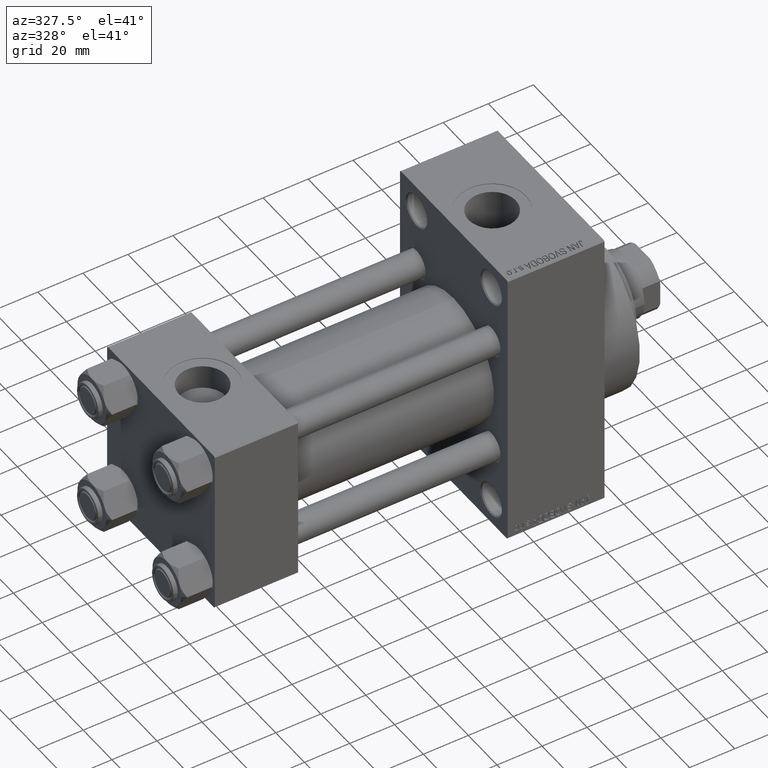
[diagram: clean part render]
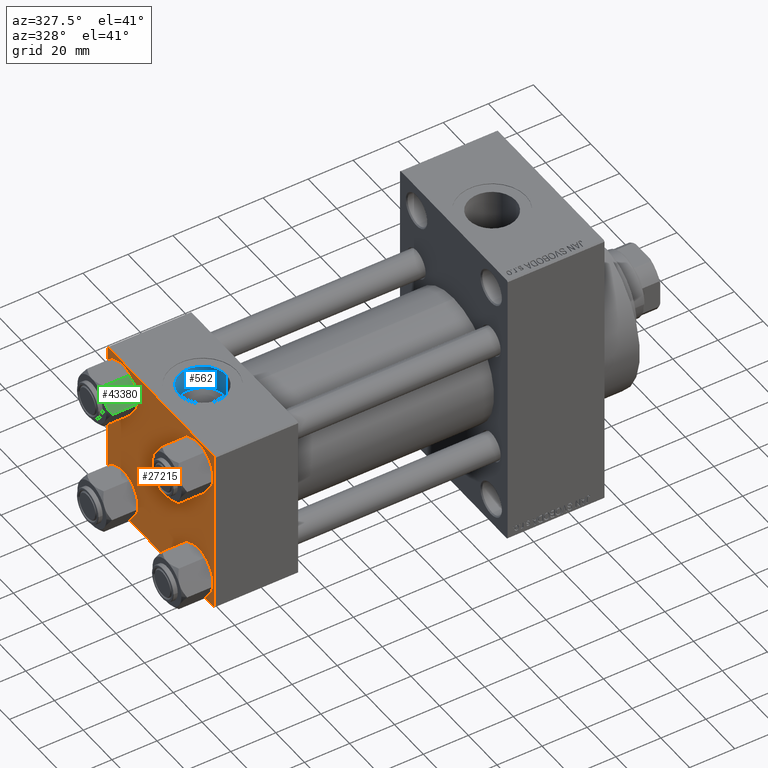
[diagram: same view with three faces highlighted in distinct colors, each labeled with its STEP entity id]
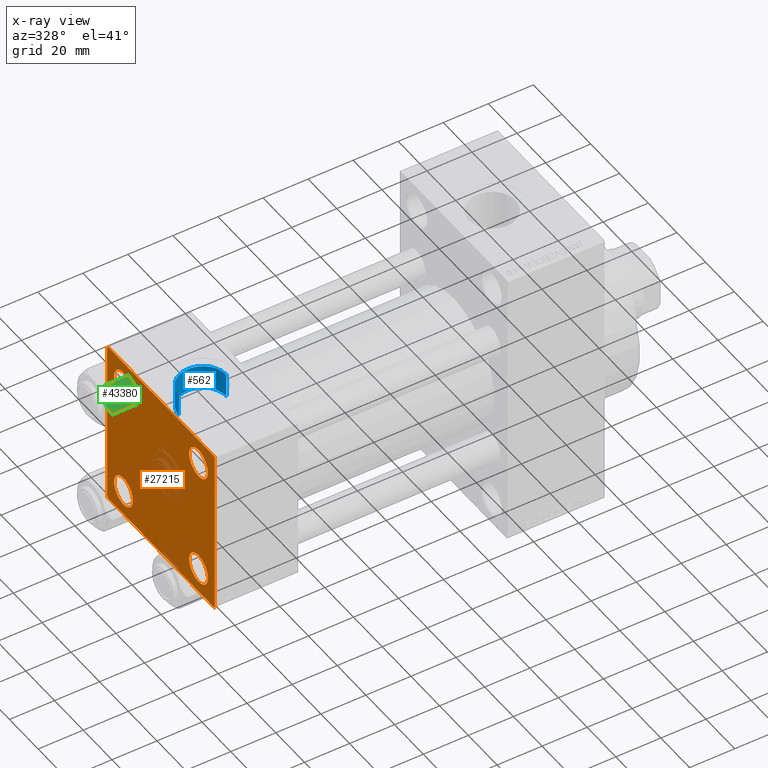
[diagram: x-ray of the same camera — body ghosted, the three highlighted faces saturated]
A machine part, auxiliary view with three faces highlighted in distinct colors.
The next image is the same camera in x-ray (body ghosted, the three faces saturated) — at least one of them is partly hidden behind the body in this view.
Their STEP definitions:

[orange] entity #27215 — the highlighted planar face has unit normal (-1, 0, 0).
#101 = EDGE_LOOP ( 'NONE', ( #21388, #47001 ) ) ;
#481 = ORIENTED_EDGE ( 'NONE', *, *, #20413, .T. ) ;
#542 = VERTEX_POINT ( 'NONE', #41646 ) ;
#585 = EDGE_CURVE ( 'NONE', #37357, #9671, #28451, .T. ) ;
#1313 = VERTEX_POINT ( 'NONE', #38065 ) ;
#1989 = LINE ( 'NONE', #35161, #24114 ) ;
#2491 = VERTEX_POINT ( 'NONE', #6250 ) ;
#2513 = CARTESIAN_POINT ( 'NONE',  ( 0.000000000000000000, -26.14999999999999147, 26.15000000000000924 ) ) ;
#3153 = DIRECTION ( 'NONE',  ( 1.000000000000000000, -0.000000000000000000, 0.000000000000000000 ) ) ;
#3506 = DIRECTION ( 'NONE',  ( 1.000000000000000000, -0.000000000000000000, 0.000000000000000000 ) ) ;
#4049 = AXIS2_PLACEMENT_3D ( 'NONE', #38309, #5617, #20174 ) ;
#4091 = FACE_BOUND ( 'NONE', #43826, .T. ) ;
#4503 = CARTESIAN_POINT ( 'NONE',  ( 0.000000000000000000, 37.49999999999999289, 37.00000000000000000 ) ) ;
#4544 = CIRCLE ( 'NONE', #17486, 6.500000000000023093 ) ;
#4675 = EDGE_CURVE ( 'NONE', #542, #18519, #33747, .T. ) ;
#4711 = VERTEX_POINT ( 'NONE', #7214 ) ;
#5563 = CIRCLE ( 'NONE', #36044, 6.500000000000023093 ) ;
#5617 = DIRECTION ( 'NONE',  ( 1.000000000000000000, -0.000000000000000000, 0.000000000000000000 ) ) ;
#5880 = DIRECTION ( 'NONE',  ( 1.000000000000000000, -0.000000000000000000, 0.000000000000000000 ) ) ;
#6245 = CARTESIAN_POINT ( 'NONE',  ( 0.000000000000000000, 26.14999999999999858, 19.64999999999998437 ) ) ;
#6250 = CARTESIAN_POINT ( 'NONE',  ( 0.000000000000000000, 26.14999999999999858, 32.65000000000002700 ) ) ;
#6845 = VERTEX_POINT ( 'NONE', #10498 ) ;
#6994 = ORIENTED_EDGE ( 'NONE', *, *, #4675, .T. ) ;
#7069 = DIRECTION ( 'NONE',  ( 0.000000000000000000, 0.000000000000000000, 1.000000000000000000 ) ) ;
#7214 = CARTESIAN_POINT ( 'NONE',  ( 0.000000000000000000, -37.50000000000000000, -37.00000000000003553 ) ) ;
#7694 = DIRECTION ( 'NONE',  ( 1.000000000000000000, -0.000000000000000000, 0.000000000000000000 ) ) ;
#7818 = VECTOR ( 'NONE', #13500, 1000.000000000000114 ) ;
#7908 = DIRECTION ( 'NONE',  ( 0.000000000000000000, 0.000000000000000000, 1.000000000000000000 ) ) ;
#8133 = PLANE ( 'NONE',  #44174 ) ;
#8295 = DIRECTION ( 'NONE',  ( -0.000000000000000000, 0.7071067811865474617, 0.7071067811865474617 ) ) ;
#8779 = DIRECTION ( 'NONE',  ( 0.000000000000000000, 0.000000000000000000, 1.000000000000000000 ) ) ;
#9433 = EDGE_LOOP ( 'NONE', ( #30407, #6994 ) ) ;
#9446 = CARTESIAN_POINT ( 'NONE',  ( 0.000000000000000000, -26.14999999999999147, -32.65000000000002700 ) ) ;
#9671 = VERTEX_POINT ( 'NONE', #38068 ) ;
#9776 = CIRCLE ( 'NONE', #21212, 6.500000000000023093 ) ;
#9791 = VERTEX_POINT ( 'NONE', #12758 ) ;
#9973 = EDGE_CURVE ( 'NONE', #43990, #2491, #24794, .T. ) ;
#10082 = CARTESIAN_POINT ( 'NONE',  ( 0.000000000000000000, 26.14999999999999858, 26.15000000000000213 ) ) ;
#10145 = CARTESIAN_POINT ( 'NONE',  ( 0.000000000000000000, 37.24999999999999289, 37.24999999999999289 ) ) ;
#10498 = CARTESIAN_POINT ( 'NONE',  ( 0.000000000000000000, -37.00000000000000711, 37.49999999999999289 ) ) ;
#10576 = CARTESIAN_POINT ( 'NONE',  ( 0.000000000000000000, 37.49999999999999289, -36.99999999999998579 ) ) ;
#10727 = EDGE_CURVE ( 'NONE', #9671, #37357, #38427, .T. ) ;
#11236 = VECTOR ( 'NONE', #27697, 1000.000000000000000 ) ;
#11751 = CARTESIAN_POINT ( 'NONE',  ( 0.000000000000000000, 37.49999999999999289, -37.50000000000000000 ) ) ;
#11843 = DIRECTION ( 'NONE',  ( 0.000000000000000000, 0.000000000000000000, -1.000000000000000000 ) ) ;
#12001 = ORIENTED_EDGE ( 'NONE', *, *, #32194, .T. ) ;
#12758 = CARTESIAN_POINT ( 'NONE',  ( 0.000000000000000000, 36.99999999999997868, -37.50000000000000000 ) ) ;
#13240 = VERTEX_POINT ( 'NONE', #14124 ) ;
#13500 = DIRECTION ( 'NONE',  ( 0.000000000000000000, 0.7071067811865474617, -0.7071067811865474617 ) ) ;
#13545 = CARTESIAN_POINT ( 'NONE',  ( 0.000000000000000000, -26.14999999999999147, 26.15000000000000924 ) ) ;
#14083 = LINE ( 'NONE', #34059, #24701 ) ;
#14124 = CARTESIAN_POINT ( 'NONE',  ( 0.000000000000000000, 36.99999999999999289, 37.50000000000000000 ) ) ;
#14428 = VERTEX_POINT ( 'NONE', #4503 ) ;
#14615 = CARTESIAN_POINT ( 'NONE',  ( 0.000000000000000000, -26.14999999999999147, 19.64999999999999147 ) ) ;
#15901 = CARTESIAN_POINT ( 'NONE',  ( 0.000000000000000000, 37.49999999999999289, 37.50000000000000000 ) ) ;
#16097 = EDGE_CURVE ( 'NONE', #1313, #4711, #1989, .T. ) ;
#16288 = VERTEX_POINT ( 'NONE', #14615 ) ;
#16582 = CARTESIAN_POINT ( 'NONE',  ( 0.000000000000000000, -26.14999999999999147, -26.15000000000000924 ) ) ;
#16642 = LINE ( 'NONE', #40989, #30842 ) ;
#17031 = VECTOR ( 'NONE', #28055, 1000.000000000000000 ) ;
#17168 = VERTEX_POINT ( 'NONE', #10576 ) ;
#17486 = AXIS2_PLACEMENT_3D ( 'NONE', #10082, #3153, #35383 ) ;
#18469 = EDGE_CURVE ( 'NONE', #9791, #1313, #44448, .T. ) ;
#18519 = VERTEX_POINT ( 'NONE', #22497 ) ;
#18591 = DIRECTION ( 'NONE',  ( -0.000000000000000000, -0.7071067811865474617, -0.7071067811865474617 ) ) ;
#19381 = DIRECTION ( 'NONE',  ( 0.000000000000000000, -1.000000000000000000, -9.251858538542972814E-17 ) ) ;
#19647 = ORIENTED_EDGE ( 'NONE', *, *, #16097, .T. ) ;
#20174 = DIRECTION ( 'NONE',  ( 0.000000000000000000, 0.000000000000000000, 1.000000000000000000 ) ) ;
#20413 = EDGE_CURVE ( 'NONE', #23329, #16288, #9776, .T. ) ;
#21212 = AXIS2_PLACEMENT_3D ( 'NONE', #13545, #3506, #7069 ) ;
#21388 = ORIENTED_EDGE ( 'NONE', *, *, #27167, .T. ) ;
#21771 = FACE_OUTER_BOUND ( 'NONE', #25844, .T. ) ;
#21784 = DIRECTION ( 'NONE',  ( 1.000000000000000000, -0.000000000000000000, 0.000000000000000000 ) ) ;
#22142 = CARTESIAN_POINT ( 'NONE',  ( 0.000000000000000000, -26.14999999999999147, 32.65000000000003411 ) ) ;
#22497 = CARTESIAN_POINT ( 'NONE',  ( 0.000000000000000000, 26.14999999999999858, -19.64999999999998792 ) ) ;
#23329 = VERTEX_POINT ( 'NONE', #22142 ) ;
#23699 = ORIENTED_EDGE ( 'NONE', *, *, #46981, .F. ) ;
#24114 = VECTOR ( 'NONE', #24184, 1000.000000000000000 ) ;
#24184 = DIRECTION ( 'NONE',  ( 0.000000000000000000, -0.7071067811865524577, 0.7071067811865426878 ) ) ;
#24359 = CARTESIAN_POINT ( 'NONE',  ( 0.000000000000000000, 37.49999999999999289, 37.50000000000000000 ) ) ;
#24629 = ORIENTED_EDGE ( 'NONE', *, *, #37404, .F. ) ;
#24701 = VECTOR ( 'NONE', #18591, 1000.000000000000114 ) ;
#24794 = CIRCLE ( 'NONE', #38498, 6.500000000000023093 ) ;
#25844 = EDGE_LOOP ( 'NONE', ( #43935, #31622, #35665, #19647, #24629, #33697, #23699, #31493 ) ) ;
#27167 = EDGE_CURVE ( 'NONE', #2491, #43990, #4544, .T. ) ;
#27215 = ADVANCED_FACE ( 'NONE', ( #4091, #44653, #37257, #33213, #21771 ), #8133, .T. ) ;
#27458 = EDGE_CURVE ( 'NONE', #14428, #17168, #40487, .T. ) ;
#27697 = DIRECTION ( 'NONE',  ( 0.000000000000000000, -1.000000000000000000, -9.251858538542971581E-17 ) ) ;
#28055 = DIRECTION ( 'NONE',  ( 0.000000000000000000, 9.251858538542971581E-17, -1.000000000000000000 ) ) ;
#28284 = LINE ( 'NONE', #38318, #17031 ) ;
#28433 = ORIENTED_EDGE ( 'NONE', *, *, #10727, .T. ) ;
#28451 = CIRCLE ( 'NONE', #4049, 6.500000000000015987 ) ;
#28927 = ORIENTED_EDGE ( 'NONE', *, *, #585, .T. ) ;
#29506 = AXIS2_PLACEMENT_3D ( 'NONE', #38144, #30990, #8779 ) ;
#29867 = CARTESIAN_POINT ( 'NONE',  ( 0.000000000000000000, 0.000000000000000000, 0.000000000000000000 ) ) ;
#30189 = VERTEX_POINT ( 'NONE', #37775 ) ;
#30407 = ORIENTED_EDGE ( 'NONE', *, *, #45878, .T. ) ;
#30445 = DIRECTION ( 'NONE',  ( 1.000000000000000000, -0.000000000000000000, 0.000000000000000000 ) ) ;
#30842 = VECTOR ( 'NONE', #8295, 1000.000000000000114 ) ;
#30990 = DIRECTION ( 'NONE',  ( 1.000000000000000000, -0.000000000000000000, 0.000000000000000000 ) ) ;
#31481 = AXIS2_PLACEMENT_3D ( 'NONE', #43270, #21784, #7908 ) ;
#31493 = ORIENTED_EDGE ( 'NONE', *, *, #35539, .T. ) ;
#31622 = ORIENTED_EDGE ( 'NONE', *, *, #35012, .T. ) ;
#31751 = LINE ( 'NONE', #24359, #11236 ) ;
#32194 = EDGE_CURVE ( 'NONE', #16288, #23329, #5563, .T. ) ;
#32734 = VECTOR ( 'NONE', #11843, 1000.000000000000000 ) ;
#32755 = DIRECTION ( 'NONE',  ( -0.000000000000000000, 0.000000000000000000, 1.000000000000000000 ) ) ;
#33108 = AXIS2_PLACEMENT_3D ( 'NONE', #16582, #30445, #44992 ) ;
#33213 = FACE_BOUND ( 'NONE', #101, .T. ) ;
#33320 = CIRCLE ( 'NONE', #29506, 6.500000000000015987 ) ;
#33478 = CARTESIAN_POINT ( 'NONE',  ( 0.000000000000000000, 26.14999999999999858, 26.15000000000000213 ) ) ;
#33697 = ORIENTED_EDGE ( 'NONE', *, *, #40141, .T. ) ;
#33747 = CIRCLE ( 'NONE', #31481, 6.500000000000015987 ) ;
#34059 = CARTESIAN_POINT ( 'NONE',  ( 0.000000000000000000, 37.24999999999998579, -37.24999999999998579 ) ) ;
#34992 = DIRECTION ( 'NONE',  ( 0.000000000000000000, 0.000000000000000000, 1.000000000000000000 ) ) ;
#35012 = EDGE_CURVE ( 'NONE', #17168, #9791, #14083, .T. ) ;
#35161 = CARTESIAN_POINT ( 'NONE',  ( 0.000000000000000000, -37.24999999999975842, -37.25000000000027001 ) ) ;
#35383 = DIRECTION ( 'NONE',  ( 0.000000000000000000, 0.000000000000000000, 1.000000000000000000 ) ) ;
#35539 = EDGE_CURVE ( 'NONE', #13240, #14428, #43082, .T. ) ;
#35665 = ORIENTED_EDGE ( 'NONE', *, *, #18469, .T. ) ;
#36044 = AXIS2_PLACEMENT_3D ( 'NONE', #2513, #5880, #34992 ) ;
#36347 = DIRECTION ( 'NONE',  ( 0.000000000000000000, 0.000000000000000000, 1.000000000000000000 ) ) ;
#37257 = FACE_BOUND ( 'NONE', #9433, .T. ) ;
#37357 = VERTEX_POINT ( 'NONE', #9446 ) ;
#37404 = EDGE_CURVE ( 'NONE', #30189, #4711, #28284, .T. ) ;
#37775 = CARTESIAN_POINT ( 'NONE',  ( 0.000000000000000000, -37.50000000000000711, 36.99999999999999289 ) ) ;
#38065 = CARTESIAN_POINT ( 'NONE',  ( 0.000000000000000000, -37.00000000000002132, -37.50000000000000711 ) ) ;
#38068 = CARTESIAN_POINT ( 'NONE',  ( 0.000000000000000000, -26.14999999999999147, -19.64999999999999503 ) ) ;
#38144 = CARTESIAN_POINT ( 'NONE',  ( 0.000000000000000000, 26.14999999999999858, -26.15000000000000213 ) ) ;
#38309 = CARTESIAN_POINT ( 'NONE',  ( 0.000000000000000000, -26.14999999999999147, -26.15000000000000924 ) ) ;
#38318 = CARTESIAN_POINT ( 'NONE',  ( 0.000000000000000000, -37.50000000000000711, 37.49999999999999289 ) ) ;
#38427 = CIRCLE ( 'NONE', #33108, 6.500000000000015987 ) ;
#38498 = AXIS2_PLACEMENT_3D ( 'NONE', #33478, #7694, #36347 ) ;
#40141 = EDGE_CURVE ( 'NONE', #30189, #6845, #16642, .T. ) ;
#40372 = DIRECTION ( 'NONE',  ( -1.000000000000000000, 0.000000000000000000, -0.000000000000000000 ) ) ;
#40487 = LINE ( 'NONE', #15901, #32734 ) ;
#40989 = CARTESIAN_POINT ( 'NONE',  ( -0.000000000000000000, -37.25000000000000000, 37.25000000000000000 ) ) ;
#41646 = CARTESIAN_POINT ( 'NONE',  ( 0.000000000000000000, 26.14999999999999858, -32.65000000000001990 ) ) ;
#43082 = LINE ( 'NONE', #10145, #7818 ) ;
#43270 = CARTESIAN_POINT ( 'NONE',  ( 0.000000000000000000, 26.14999999999999858, -26.15000000000000213 ) ) ;
#43826 = EDGE_LOOP ( 'NONE', ( #481, #12001 ) ) ;
#43935 = ORIENTED_EDGE ( 'NONE', *, *, #27458, .T. ) ;
#43990 = VERTEX_POINT ( 'NONE', #6245 ) ;
#44174 = AXIS2_PLACEMENT_3D ( 'NONE', #29867, #40372, #32755 ) ;
#44448 = LINE ( 'NONE', #11751, #46320 ) ;
#44653 = FACE_BOUND ( 'NONE', #45101, .T. ) ;
#44992 = DIRECTION ( 'NONE',  ( 0.000000000000000000, 0.000000000000000000, 1.000000000000000000 ) ) ;
#45101 = EDGE_LOOP ( 'NONE', ( #28433, #28927 ) ) ;
#45878 = EDGE_CURVE ( 'NONE', #18519, #542, #33320, .T. ) ;
#46320 = VECTOR ( 'NONE', #19381, 1000.000000000000000 ) ;
#46981 = EDGE_CURVE ( 'NONE', #13240, #6845, #31751, .T. ) ;
#47001 = ORIENTED_EDGE ( 'NONE', *, *, #9973, .T. ) ;

[blue] entity #562 — the highlighted cylindrical surface (edge-blend (fillet) strip) has radius 10.48 mm, axis along (0, 0, 1).
#562 = ADVANCED_FACE ( 'NONE', ( #19453 ), #34020, .F. ) ;
#1319 = CARTESIAN_POINT ( 'NONE',  ( 18.50000000000000000, -5.204170427930421283E-15, 26.69999999999999929 ) ) ;
#3249 = ORIENTED_EDGE ( 'NONE', *, *, #40267, .T. ) ;
#5994 = AXIS2_PLACEMENT_3D ( 'NONE', #38214, #27477, #19350 ) ;
#6227 = CARTESIAN_POINT ( 'NONE',  ( 8.019999999999999574, -3.920740582423995006E-15, 26.69999999999999929 ) ) ;
#6498 = VERTEX_POINT ( 'NONE', #23407 ) ;
#7889 = VECTOR ( 'NONE', #11651, 1000.000000000000000 ) ;
#11651 = DIRECTION ( 'NONE',  ( -0.000000000000000000, -0.000000000000000000, 1.000000000000000000 ) ) ;
#13534 = DIRECTION ( 'NONE',  ( 0.000000000000000000, 0.000000000000000000, 1.000000000000000000 ) ) ;
#13996 = VERTEX_POINT ( 'NONE', #35436 ) ;
#15882 = DIRECTION ( 'NONE',  ( -0.000000000000000000, -0.000000000000000000, 1.000000000000000000 ) ) ;
#16380 = EDGE_CURVE ( 'NONE', #6498, #13996, #20069, .T. ) ;
#17781 = AXIS2_PLACEMENT_3D ( 'NONE', #1319, #15882, #30455 ) ;
#19350 = DIRECTION ( 'NONE',  ( 1.000000000000000000, 0.000000000000000000, 0.000000000000000000 ) ) ;
#19453 = FACE_OUTER_BOUND ( 'NONE', #25965, .T. ) ;
#20069 = LINE ( 'NONE', #6227, #22605 ) ;
#20763 = EDGE_CURVE ( 'NONE', #33976, #6498, #27354, .T. ) ;
#20926 = DIRECTION ( 'NONE',  ( 1.000000000000000000, 0.000000000000000000, 0.000000000000000000 ) ) ;
#22605 = VECTOR ( 'NONE', #42738, 1000.000000000000000 ) ;
#23407 = CARTESIAN_POINT ( 'NONE',  ( 8.019999999999999574, -3.920740582423995006E-15, 26.69999999999999929 ) ) ;
#25064 = CARTESIAN_POINT ( 'NONE',  ( 28.98000000000000043, -5.204170427930421283E-15, 37.29999999999999716 ) ) ;
#25965 = EDGE_LOOP ( 'NONE', ( #43363, #34309, #29613, #3249 ) ) ;
#27354 = CIRCLE ( 'NONE', #5994, 10.48000000000000043 ) ;
#27477 = DIRECTION ( 'NONE',  ( 0.000000000000000000, 0.000000000000000000, 1.000000000000000000 ) ) ;
#29613 = ORIENTED_EDGE ( 'NONE', *, *, #35080, .T. ) ;
#30047 = LINE ( 'NONE', #44598, #7889 ) ;
#30088 = AXIS2_PLACEMENT_3D ( 'NONE', #32139, #13534, #20926 ) ;
#30455 = DIRECTION ( 'NONE',  ( 1.000000000000000000, 0.000000000000000000, 0.000000000000000000 ) ) ;
#31961 = VERTEX_POINT ( 'NONE', #25064 ) ;
#32139 = CARTESIAN_POINT ( 'NONE',  ( 18.50000000000000000, -5.204170427930421283E-15, 37.29999999999999716 ) ) ;
#33976 = VERTEX_POINT ( 'NONE', #36462 ) ;
#34020 = CYLINDRICAL_SURFACE ( 'NONE', #17781, 10.48000000000000043 ) ;
#34309 = ORIENTED_EDGE ( 'NONE', *, *, #20763, .F. ) ;
#35080 = EDGE_CURVE ( 'NONE', #33976, #31961, #30047, .T. ) ;
#35436 = CARTESIAN_POINT ( 'NONE',  ( 8.019999999999999574, -3.920740582423995006E-15, 37.29999999999999716 ) ) ;
#36462 = CARTESIAN_POINT ( 'NONE',  ( 28.98000000000000043, -5.204170427930421283E-15, 26.69999999999999929 ) ) ;
#38214 = CARTESIAN_POINT ( 'NONE',  ( 18.50000000000000000, -5.204170427930421283E-15, 26.69999999999999929 ) ) ;
#40267 = EDGE_CURVE ( 'NONE', #31961, #13996, #46848, .T. ) ;
#42738 = DIRECTION ( 'NONE',  ( -0.000000000000000000, -0.000000000000000000, 1.000000000000000000 ) ) ;
#43363 = ORIENTED_EDGE ( 'NONE', *, *, #16380, .F. ) ;
#44598 = CARTESIAN_POINT ( 'NONE',  ( 28.98000000000000043, -5.204170427930421283E-15, 26.69999999999999929 ) ) ;
#46848 = CIRCLE ( 'NONE', #30088, 10.48000000000000043 ) ;

[green] entity #43380 — the highlighted planar face has unit normal (0, 0.866, -0.5).
#276 = EDGE_CURVE ( 'NONE', #24220, #42540, #15915, .T. ) ;
#1134 = CARTESIAN_POINT ( 'NONE',  ( -7.713000053756304375, -6.767122412062951398, -0.1545239700039803266 ) ) ;
#1521 = CARTESIAN_POINT ( 'NONE',  ( -9.716999946243698005, -3.296092779912219939, -13.84547602999602667 ) ) ;
#2308 = B_SPLINE_CURVE_WITH_KNOTS ( 'NONE', 3,
 ( #16922, #38658, #27675, #12398, #16703, #38420, #45813, #9781 ),
 .UNSPECIFIED., .F., .F.,
 ( 4, 2, 2, 4 ),
 ( 2.544312114893457383E-07, 0.003011550106433538623, 0.004517197944044561847, 0.006022845781655586372 ),
 .UNSPECIFIED. ) ;
#2700 = CARTESIAN_POINT ( 'NONE',  ( -8.715000000000006963, -5.031607595987586556, 0.000000000000000000 ) ) ;
#2909 = ORIENTED_EDGE ( 'NONE', *, *, #23132, .F. ) ;
#3637 = ORIENTED_EDGE ( 'NONE', *, *, #44292, .F. ) ;
#3714 = CARTESIAN_POINT ( 'NONE',  ( -5.810000000000000497, -10.06321519197517844, -1.556784808024813893 ) ) ;
#4837 = VECTOR ( 'NONE', #44209, 1000.000000000000000 ) ;
#5112 = CARTESIAN_POINT ( 'NONE',  ( -8.715000000000006963, -5.031607595987586556, -14.00000000000000000 ) ) ;
#5955 = DIRECTION ( 'NONE',  ( -0.000000000000000000, -0.000000000000000000, 1.000000000000000000 ) ) ;
#9781 = CARTESIAN_POINT ( 'NONE',  ( -8.715000000000006963, -5.031607595987586556, 0.000000000000000000 ) ) ;
#9998 = PLANE ( 'NONE',  #28658 ) ;
#11879 = CARTESIAN_POINT ( 'NONE',  ( -8.715000000000006963, -5.031607595987586556, 0.000000000000000000 ) ) ;
#12398 = CARTESIAN_POINT ( 'NONE',  ( -9.974696630283190757, -2.849749030213787115, -0.3002673809867329457 ) ) ;
#13110 = ORIENTED_EDGE ( 'NONE', *, *, #33556, .T. ) ;
#13114 = EDGE_CURVE ( 'NONE', #26584, #15442, #45272, .T. ) ;
#13416 = CARTESIAN_POINT ( 'NONE',  ( -7.700834831386346835, -6.788193195293090731, -13.80960203119266438 ) ) ;
#13808 = CARTESIAN_POINT ( 'NONE',  ( -5.810000000000000497, -10.06321519197517844, -14.00000000000000000 ) ) ;
#15442 = VERTEX_POINT ( 'NONE', #23594 ) ;
#15693 = CARTESIAN_POINT ( 'NONE',  ( -5.810000000000000497, -10.06321519197517844, -1.556784808024813893 ) ) ;
#15915 = B_SPLINE_CURVE_WITH_KNOTS ( 'NONE', 3,
 ( #11879, #18813, #1134, #22388, #26208, #15693 ),
 .UNSPECIFIED., .F., .F.,
 ( 4, 2, 4 ),
 ( 0.006022845781655586372, 0.009013049135303635023, 0.01200325248895168367 ),
 .UNSPECIFIED. ) ;
#16004 = EDGE_CURVE ( 'NONE', #15442, #41039, #42802, .T. ) ;
#16080 = CARTESIAN_POINT ( 'NONE',  ( -11.16498164529022219, -0.7881149087337223635, -12.89823354668505040 ) ) ;
#16209 = CARTESIAN_POINT ( 'NONE',  ( -11.61999999999999922, 6.288644352490894150E-15, -14.00000000000000000 ) ) ;
#16703 = CARTESIAN_POINT ( 'NONE',  ( -9.729165168613654657, -3.275021996682076608, -0.1903979688073365595 ) ) ;
#16922 = CARTESIAN_POINT ( 'NONE',  ( -11.61999999999999922, 6.270720075409452187E-15, -1.556784808024810562 ) ) ;
#18069 = CARTESIAN_POINT ( 'NONE',  ( -5.810000000000000497, -10.06321519197517844, -12.44321519197518633 ) ) ;
#18365 = ORIENTED_EDGE ( 'NONE', *, *, #16004, .F. ) ;
#18665 = CARTESIAN_POINT ( 'NONE',  ( -5.810000000000000497, -10.06321519197517844, -14.00000000000000000 ) ) ;
#18813 = CARTESIAN_POINT ( 'NONE',  ( -8.209704053696567527, -5.906805847843720869, 6.159623592433269699E-15 ) ) ;
#21162 = ORIENTED_EDGE ( 'NONE', *, *, #13114, .F. ) ;
#22388 = CARTESIAN_POINT ( 'NONE',  ( -6.733375043383495573, -8.463882702393842550, -0.7114554706434480513 ) ) ;
#22536 = CARTESIAN_POINT ( 'NONE',  ( -9.220295946303428636, -4.156409344131446026, -14.00000000000000711 ) ) ;
#22687 = CARTESIAN_POINT ( 'NONE',  ( -11.61999999999999922, 6.270720075510426383E-15, -12.44321519197518988 ) ) ;
#23132 = EDGE_CURVE ( 'NONE', #41039, #29313, #24328, .T. ) ;
#23594 = CARTESIAN_POINT ( 'NONE',  ( -8.715000000000006963, -5.031607595987586556, -14.00000000000000000 ) ) ;
#24158 = CARTESIAN_POINT ( 'NONE',  ( -6.265545725125283738, -9.274186850887380373, -12.89876091710046779 ) ) ;
#24220 = VERTEX_POINT ( 'NONE', #2700 ) ;
#24328 = LINE ( 'NONE', #16209, #44178 ) ;
#24397 = CARTESIAN_POINT ( 'NONE',  ( -8.202333004087902779, -5.919572880271047666, -13.96005881939309745 ) ) ;
#26208 = CARTESIAN_POINT ( 'NONE',  ( -6.265018354709776638, -9.275100283241451748, -1.101766453314952043 ) ) ;
#26584 = VERTEX_POINT ( 'NONE', #18069 ) ;
#27675 = CARTESIAN_POINT ( 'NONE',  ( -10.69859855102500923, -1.595914123792257611, -0.7141438259524607313 ) ) ;
#28367 = DIRECTION ( 'NONE',  ( 0.8660254037844390407, 0.4999999999999995004, 0.000000000000000000 ) ) ;
#28658 = AXIS2_PLACEMENT_3D ( 'NONE', #13808, #28367, #38882 ) ;
#29313 = VERTEX_POINT ( 'NONE', #43459 ) ;
#30174 = CARTESIAN_POINT ( 'NONE',  ( -11.61999999999999922, 6.270720075510426383E-15, -12.44321519197518988 ) ) ;
#30854 = CARTESIAN_POINT ( 'NONE',  ( -5.810000000000000497, -10.06321519197517844, -12.44321519197518633 ) ) ;
#33556 = EDGE_CURVE ( 'NONE', #26584, #42540, #39915, .T. ) ;
#33833 = EDGE_LOOP ( 'NONE', ( #21162, #13110, #34145, #3637, #2909, #18365 ) ) ;
#34145 = ORIENTED_EDGE ( 'NONE', *, *, #276, .F. ) ;
#35365 = CARTESIAN_POINT ( 'NONE',  ( -8.460569896449619876, -5.472293462311856871, -14.00000000000000888 ) ) ;
#38420 = CARTESIAN_POINT ( 'NONE',  ( -9.227666995912100489, -4.143642311704120118, -0.03994118060690279165 ) ) ;
#38658 = CARTESIAN_POINT ( 'NONE',  ( -11.16445427487471420, -0.7890283410877914072, -1.101239082899528432 ) ) ;
#38719 = CARTESIAN_POINT ( 'NONE',  ( -6.731401448974989599, -8.467301068182909063, -13.28585617404753272 ) ) ;
#38882 = DIRECTION ( 'NONE',  ( -0.4999999999999994449, 0.8660254037844389297, 0.000000000000000000 ) ) ;
#38945 = CARTESIAN_POINT ( 'NONE',  ( -8.715000000000006963, -5.031607595987586556, -14.00000000000000000 ) ) ;
#39915 = LINE ( 'NONE', #18665, #4837 ) ;
#41039 = VERTEX_POINT ( 'NONE', #22687 ) ;
#42540 = VERTEX_POINT ( 'NONE', #3714 ) ;
#42802 = B_SPLINE_CURVE_WITH_KNOTS ( 'NONE', 3,
 ( #5112, #22536, #1521, #44963, #16080, #30174 ),
 .UNSPECIFIED., .F., .F.,
 ( 4, 2, 4 ),
 ( 0.006022845781655596781, 0.009013049135303641962, 0.01200325248895168714 ),
 .UNSPECIFIED. ) ;
#43380 = ADVANCED_FACE ( 'NONE', ( #47215 ), #9998, .F. ) ;
#43459 = CARTESIAN_POINT ( 'NONE',  ( -11.61999999999999922, 6.270720075409452187E-15, -1.556784808024810562 ) ) ;
#44178 = VECTOR ( 'NONE', #5955, 1000.000000000000000 ) ;
#44209 = DIRECTION ( 'NONE',  ( -0.000000000000000000, -0.000000000000000000, 1.000000000000000000 ) ) ;
#44292 = EDGE_CURVE ( 'NONE', #29313, #24220, #2308, .T. ) ;
#44963 = CARTESIAN_POINT ( 'NONE',  ( -10.69662495661650148, -1.599332489581326344, -13.28854452935655317 ) ) ;
#45272 = B_SPLINE_CURVE_WITH_KNOTS ( 'NONE', 3,
 ( #30854, #24158, #38719, #46108, #13416, #24397, #35365, #38945 ),
 .UNSPECIFIED., .F., .F.,
 ( 4, 2, 2, 4 ),
 ( 2.544312114906334931E-07, 0.003011550106433543393, 0.004517197944044570521, 0.006022845781655596781 ),
 .UNSPECIFIED. ) ;
#45813 = CARTESIAN_POINT ( 'NONE',  ( -8.969430103550386946, -4.590921729663310025, 6.662949392646161370E-15 ) ) ;
#46108 = CARTESIAN_POINT ( 'NONE',  ( -7.455303369716809847, -7.213466161761383333, -13.69973261901326644 ) ) ;
#47215 = FACE_OUTER_BOUND ( 'NONE', #33833, .T. ) ;